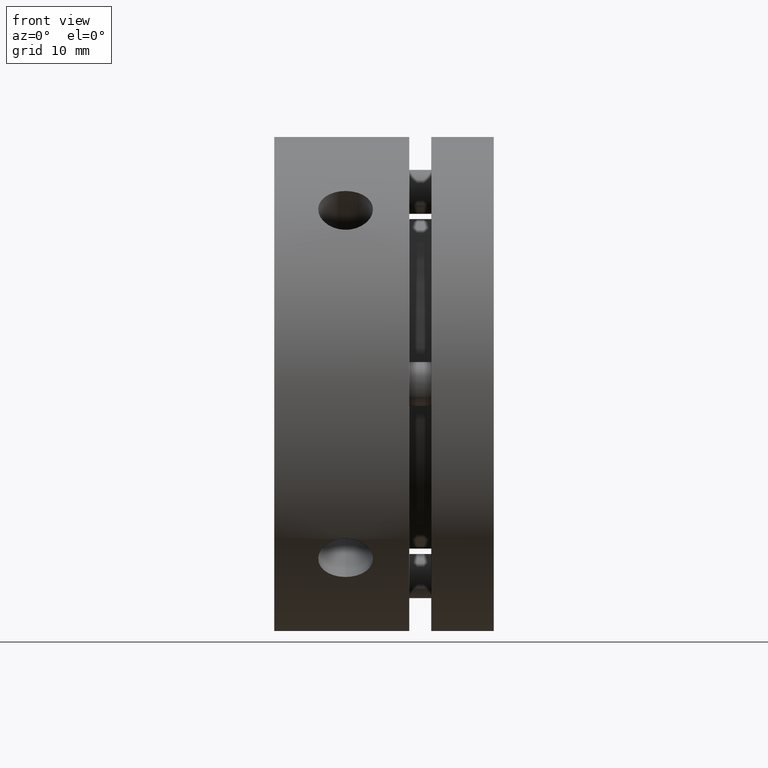
[diagram: clean part render]
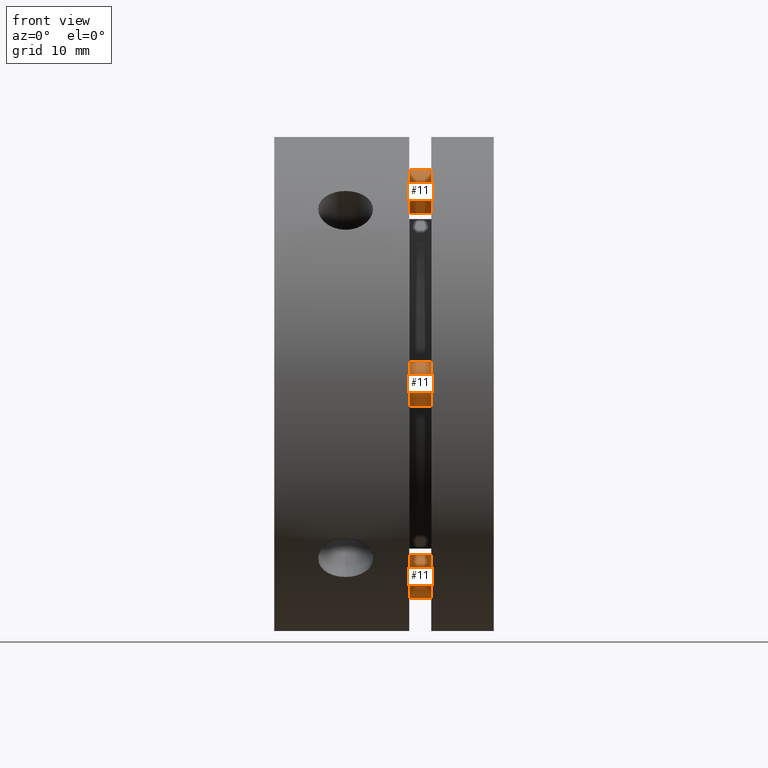
[diagram: same view with one multi-face feature highlighted, each face labeled with its STEP entity id]
A machine part, front view. The highlighted faces form ONE feature: a constant-radius fillet chain: 3 tangent blend faces with common blend radius 2 mm. The faces share edges in the B-rep.
Their STEP definitions:
[1] entity #11 (Cylinder):
#11 = ADVANCED_FACE ( 'NONE', ( #2336 ), #2346, .T. ) ;
#137 = DIRECTION ( 'NONE',  ( 0.0000000000000000000, 0.0000000000000000000, 1.000000000000000000 ) ) ;
#140 = DIRECTION ( 'NONE',  ( -0.0000000000000000000, 1.000000000000000000, -0.0000000000000000000 ) ) ;
#141 = CARTESIAN_POINT ( 'NONE',  ( 0.0000000000000000000, -14.00000000000000000, 0.0000000000000000000 ) ) ;
#458 = CARTESIAN_POINT ( 'NONE',  ( 0.0000000000000000000, -14.00000000000000000, 2.000000000000000000 ) ) ;
#459 = CARTESIAN_POINT ( 'NONE',  ( 2.449293598294706400E-016, -14.00000000000000000, -2.000000000000000000 ) ) ;
#505 = CARTESIAN_POINT ( 'NONE',  ( 0.0000000000000000000, 0.0000000000000000000, 2.000000000000000000 ) ) ;
#506 = CARTESIAN_POINT ( 'NONE',  ( 2.449293598294706400E-016, 0.0000000000000000000, -2.000000000000000000 ) ) ;
#652 = EDGE_LOOP ( 'NONE', ( #1976, #1960, #747, #748 ) ) ;
#747 = ORIENTED_EDGE ( 'NONE', *, *, #3400, .T. ) ;
#748 = ORIENTED_EDGE ( 'NONE', *, *, #3402, .F. ) ;
#1152 = DIRECTION ( 'NONE',  ( -0.0000000000000000000, 1.000000000000000000, -0.0000000000000000000 ) ) ;
#1157 = CARTESIAN_POINT ( 'NONE',  ( 2.449293598294706400E-016, -14.00000000000000000, -2.000000000000000000 ) ) ;
#1183 = CARTESIAN_POINT ( 'NONE',  ( 0.0000000000000000000, -14.00000000000000000, 0.0000000000000000000 ) ) ;
#1184 = DIRECTION ( 'NONE',  ( 0.0000000000000000000, -1.000000000000000000, 0.0000000000000000000 ) ) ;
#1185 = DIRECTION ( 'NONE',  ( 0.0000000000000000000, 0.0000000000000000000, -1.000000000000000000 ) ) ;
#1206 = DIRECTION ( 'NONE',  ( -0.0000000000000000000, 1.000000000000000000, -0.0000000000000000000 ) ) ;
#1207 = CARTESIAN_POINT ( 'NONE',  ( 0.0000000000000000000, 0.0000000000000000000, 0.0000000000000000000 ) ) ;
#1208 = DIRECTION ( 'NONE',  ( -0.0000000000000000000, -1.000000000000000000, -0.0000000000000000000 ) ) ;
#1209 = DIRECTION ( 'NONE',  ( 0.0000000000000000000, 0.0000000000000000000, 1.000000000000000000 ) ) ;
#1210 = CARTESIAN_POINT ( 'NONE',  ( 0.0000000000000000000, -14.00000000000000000, 2.000000000000000000 ) ) ;
#1932 = VERTEX_POINT ( 'NONE', #459 ) ;
#1943 = VERTEX_POINT ( 'NONE', #458 ) ;
#1960 = ORIENTED_EDGE ( 'NONE', *, *, #3381, .T. ) ;
#1976 = ORIENTED_EDGE ( 'NONE', *, *, #3390, .F. ) ;
#2039 = VERTEX_POINT ( 'NONE', #505 ) ;
#2040 = VERTEX_POINT ( 'NONE', #506 ) ;
#2336 = FACE_OUTER_BOUND ( 'NONE', #652, .T. ) ;
#2346 = CYLINDRICAL_SURFACE ( 'NONE', #3549, 2.000000000000000000 ) ;
#2670 = AXIS2_PLACEMENT_3D ( 'NONE', #1183, #1184, #1185 ) ;
#2675 = AXIS2_PLACEMENT_3D ( 'NONE', #1207, #1208, #1209 ) ;
#2833 = LINE ( 'NONE', #1157, #2835 ) ;
#2835 = VECTOR ( 'NONE', #1152, 1000.000000000000000 ) ;
#2847 = CIRCLE ( 'NONE', #2670, 2.000000000000000000 ) ;
#2858 = LINE ( 'NONE', #1210, #2866 ) ;
#2861 = CIRCLE ( 'NONE', #2675, 2.000000000000000000 ) ;
#2866 = VECTOR ( 'NONE', #1206, 1000.000000000000000 ) ;
#3381 = EDGE_CURVE ( 'NONE', #1932, #2040, #2833, .T. ) ;
#3390 = EDGE_CURVE ( 'NONE', #1932, #1943, #2847, .T. ) ;
#3400 = EDGE_CURVE ( 'NONE', #2040, #2039, #2861, .T. ) ;
#3402 = EDGE_CURVE ( 'NONE', #1943, #2039, #2858, .T. ) ;
#3549 = AXIS2_PLACEMENT_3D ( 'NONE', #141, #140, #137 ) ;
[2] entity #11 (Cylinder):
#11 = ADVANCED_FACE ( 'NONE', ( #2336 ), #2346, .T. ) ;
#137 = DIRECTION ( 'NONE',  ( 0.0000000000000000000, 0.0000000000000000000, 1.000000000000000000 ) ) ;
#140 = DIRECTION ( 'NONE',  ( -0.0000000000000000000, 1.000000000000000000, -0.0000000000000000000 ) ) ;
#141 = CARTESIAN_POINT ( 'NONE',  ( 0.0000000000000000000, -14.00000000000000000, 0.0000000000000000000 ) ) ;
#458 = CARTESIAN_POINT ( 'NONE',  ( 0.0000000000000000000, -14.00000000000000000, 2.000000000000000000 ) ) ;
#459 = CARTESIAN_POINT ( 'NONE',  ( 2.449293598294706400E-016, -14.00000000000000000, -2.000000000000000000 ) ) ;
#505 = CARTESIAN_POINT ( 'NONE',  ( 0.0000000000000000000, 0.0000000000000000000, 2.000000000000000000 ) ) ;
#506 = CARTESIAN_POINT ( 'NONE',  ( 2.449293598294706400E-016, 0.0000000000000000000, -2.000000000000000000 ) ) ;
#652 = EDGE_LOOP ( 'NONE', ( #1976, #1960, #747, #748 ) ) ;
#747 = ORIENTED_EDGE ( 'NONE', *, *, #3400, .T. ) ;
#748 = ORIENTED_EDGE ( 'NONE', *, *, #3402, .F. ) ;
#1152 = DIRECTION ( 'NONE',  ( -0.0000000000000000000, 1.000000000000000000, -0.0000000000000000000 ) ) ;
#1157 = CARTESIAN_POINT ( 'NONE',  ( 2.449293598294706400E-016, -14.00000000000000000, -2.000000000000000000 ) ) ;
#1183 = CARTESIAN_POINT ( 'NONE',  ( 0.0000000000000000000, -14.00000000000000000, 0.0000000000000000000 ) ) ;
#1184 = DIRECTION ( 'NONE',  ( 0.0000000000000000000, -1.000000000000000000, 0.0000000000000000000 ) ) ;
#1185 = DIRECTION ( 'NONE',  ( 0.0000000000000000000, 0.0000000000000000000, -1.000000000000000000 ) ) ;
#1206 = DIRECTION ( 'NONE',  ( -0.0000000000000000000, 1.000000000000000000, -0.0000000000000000000 ) ) ;
#1207 = CARTESIAN_POINT ( 'NONE',  ( 0.0000000000000000000, 0.0000000000000000000, 0.0000000000000000000 ) ) ;
#1208 = DIRECTION ( 'NONE',  ( -0.0000000000000000000, -1.000000000000000000, -0.0000000000000000000 ) ) ;
#1209 = DIRECTION ( 'NONE',  ( 0.0000000000000000000, 0.0000000000000000000, 1.000000000000000000 ) ) ;
#1210 = CARTESIAN_POINT ( 'NONE',  ( 0.0000000000000000000, -14.00000000000000000, 2.000000000000000000 ) ) ;
#1932 = VERTEX_POINT ( 'NONE', #459 ) ;
#1943 = VERTEX_POINT ( 'NONE', #458 ) ;
#1960 = ORIENTED_EDGE ( 'NONE', *, *, #3381, .T. ) ;
#1976 = ORIENTED_EDGE ( 'NONE', *, *, #3390, .F. ) ;
#2039 = VERTEX_POINT ( 'NONE', #505 ) ;
#2040 = VERTEX_POINT ( 'NONE', #506 ) ;
#2336 = FACE_OUTER_BOUND ( 'NONE', #652, .T. ) ;
#2346 = CYLINDRICAL_SURFACE ( 'NONE', #3549, 2.000000000000000000 ) ;
#2670 = AXIS2_PLACEMENT_3D ( 'NONE', #1183, #1184, #1185 ) ;
#2675 = AXIS2_PLACEMENT_3D ( 'NONE', #1207, #1208, #1209 ) ;
#2833 = LINE ( 'NONE', #1157, #2835 ) ;
#2835 = VECTOR ( 'NONE', #1152, 1000.000000000000000 ) ;
#2847 = CIRCLE ( 'NONE', #2670, 2.000000000000000000 ) ;
#2858 = LINE ( 'NONE', #1210, #2866 ) ;
#2861 = CIRCLE ( 'NONE', #2675, 2.000000000000000000 ) ;
#2866 = VECTOR ( 'NONE', #1206, 1000.000000000000000 ) ;
#3381 = EDGE_CURVE ( 'NONE', #1932, #2040, #2833, .T. ) ;
#3390 = EDGE_CURVE ( 'NONE', #1932, #1943, #2847, .T. ) ;
#3400 = EDGE_CURVE ( 'NONE', #2040, #2039, #2861, .T. ) ;
#3402 = EDGE_CURVE ( 'NONE', #1943, #2039, #2858, .T. ) ;
#3549 = AXIS2_PLACEMENT_3D ( 'NONE', #141, #140, #137 ) ;
[3] entity #11 (Cylinder):
#11 = ADVANCED_FACE ( 'NONE', ( #2336 ), #2346, .T. ) ;
#137 = DIRECTION ( 'NONE',  ( 0.0000000000000000000, 0.0000000000000000000, 1.000000000000000000 ) ) ;
#140 = DIRECTION ( 'NONE',  ( -0.0000000000000000000, 1.000000000000000000, -0.0000000000000000000 ) ) ;
#141 = CARTESIAN_POINT ( 'NONE',  ( 0.0000000000000000000, -14.00000000000000000, 0.0000000000000000000 ) ) ;
#458 = CARTESIAN_POINT ( 'NONE',  ( 0.0000000000000000000, -14.00000000000000000, 2.000000000000000000 ) ) ;
#459 = CARTESIAN_POINT ( 'NONE',  ( 2.449293598294706400E-016, -14.00000000000000000, -2.000000000000000000 ) ) ;
#505 = CARTESIAN_POINT ( 'NONE',  ( 0.0000000000000000000, 0.0000000000000000000, 2.000000000000000000 ) ) ;
#506 = CARTESIAN_POINT ( 'NONE',  ( 2.449293598294706400E-016, 0.0000000000000000000, -2.000000000000000000 ) ) ;
#652 = EDGE_LOOP ( 'NONE', ( #1976, #1960, #747, #748 ) ) ;
#747 = ORIENTED_EDGE ( 'NONE', *, *, #3400, .T. ) ;
#748 = ORIENTED_EDGE ( 'NONE', *, *, #3402, .F. ) ;
#1152 = DIRECTION ( 'NONE',  ( -0.0000000000000000000, 1.000000000000000000, -0.0000000000000000000 ) ) ;
#1157 = CARTESIAN_POINT ( 'NONE',  ( 2.449293598294706400E-016, -14.00000000000000000, -2.000000000000000000 ) ) ;
#1183 = CARTESIAN_POINT ( 'NONE',  ( 0.0000000000000000000, -14.00000000000000000, 0.0000000000000000000 ) ) ;
#1184 = DIRECTION ( 'NONE',  ( 0.0000000000000000000, -1.000000000000000000, 0.0000000000000000000 ) ) ;
#1185 = DIRECTION ( 'NONE',  ( 0.0000000000000000000, 0.0000000000000000000, -1.000000000000000000 ) ) ;
#1206 = DIRECTION ( 'NONE',  ( -0.0000000000000000000, 1.000000000000000000, -0.0000000000000000000 ) ) ;
#1207 = CARTESIAN_POINT ( 'NONE',  ( 0.0000000000000000000, 0.0000000000000000000, 0.0000000000000000000 ) ) ;
#1208 = DIRECTION ( 'NONE',  ( -0.0000000000000000000, -1.000000000000000000, -0.0000000000000000000 ) ) ;
#1209 = DIRECTION ( 'NONE',  ( 0.0000000000000000000, 0.0000000000000000000, 1.000000000000000000 ) ) ;
#1210 = CARTESIAN_POINT ( 'NONE',  ( 0.0000000000000000000, -14.00000000000000000, 2.000000000000000000 ) ) ;
#1932 = VERTEX_POINT ( 'NONE', #459 ) ;
#1943 = VERTEX_POINT ( 'NONE', #458 ) ;
#1960 = ORIENTED_EDGE ( 'NONE', *, *, #3381, .T. ) ;
#1976 = ORIENTED_EDGE ( 'NONE', *, *, #3390, .F. ) ;
#2039 = VERTEX_POINT ( 'NONE', #505 ) ;
#2040 = VERTEX_POINT ( 'NONE', #506 ) ;
#2336 = FACE_OUTER_BOUND ( 'NONE', #652, .T. ) ;
#2346 = CYLINDRICAL_SURFACE ( 'NONE', #3549, 2.000000000000000000 ) ;
#2670 = AXIS2_PLACEMENT_3D ( 'NONE', #1183, #1184, #1185 ) ;
#2675 = AXIS2_PLACEMENT_3D ( 'NONE', #1207, #1208, #1209 ) ;
#2833 = LINE ( 'NONE', #1157, #2835 ) ;
#2835 = VECTOR ( 'NONE', #1152, 1000.000000000000000 ) ;
#2847 = CIRCLE ( 'NONE', #2670, 2.000000000000000000 ) ;
#2858 = LINE ( 'NONE', #1210, #2866 ) ;
#2861 = CIRCLE ( 'NONE', #2675, 2.000000000000000000 ) ;
#2866 = VECTOR ( 'NONE', #1206, 1000.000000000000000 ) ;
#3381 = EDGE_CURVE ( 'NONE', #1932, #2040, #2833, .T. ) ;
#3390 = EDGE_CURVE ( 'NONE', #1932, #1943, #2847, .T. ) ;
#3400 = EDGE_CURVE ( 'NONE', #2040, #2039, #2861, .T. ) ;
#3402 = EDGE_CURVE ( 'NONE', #1943, #2039, #2858, .T. ) ;
#3549 = AXIS2_PLACEMENT_3D ( 'NONE', #141, #140, #137 ) ;